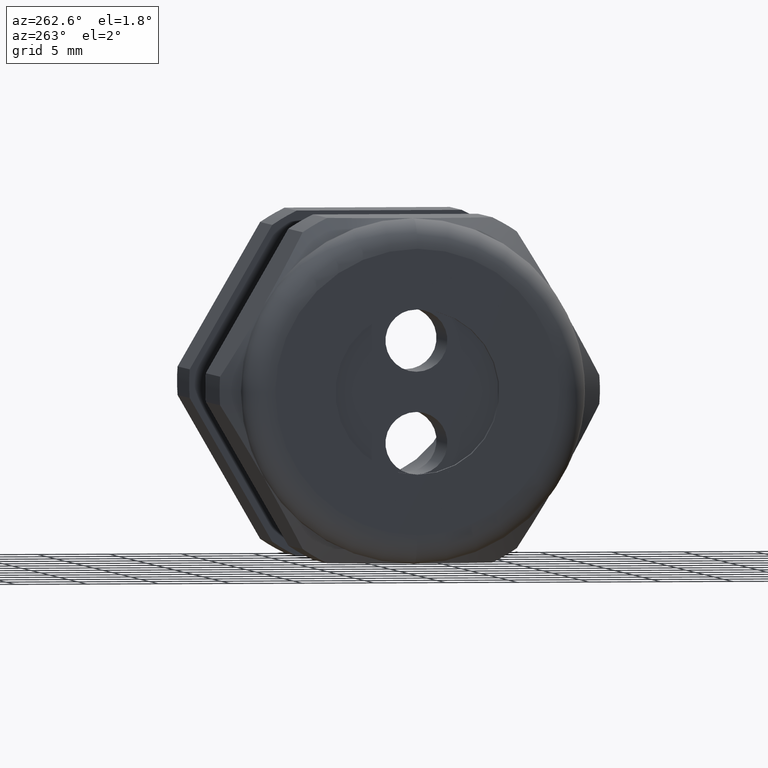
[diagram: clean part render]
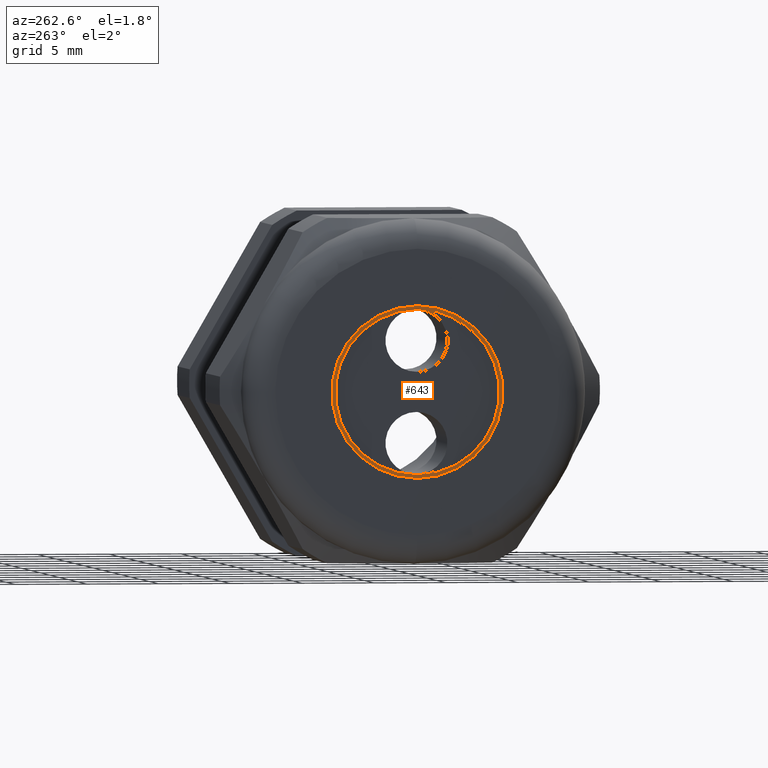
[diagram: same view with one face highlighted and labeled with its STEP entity id]
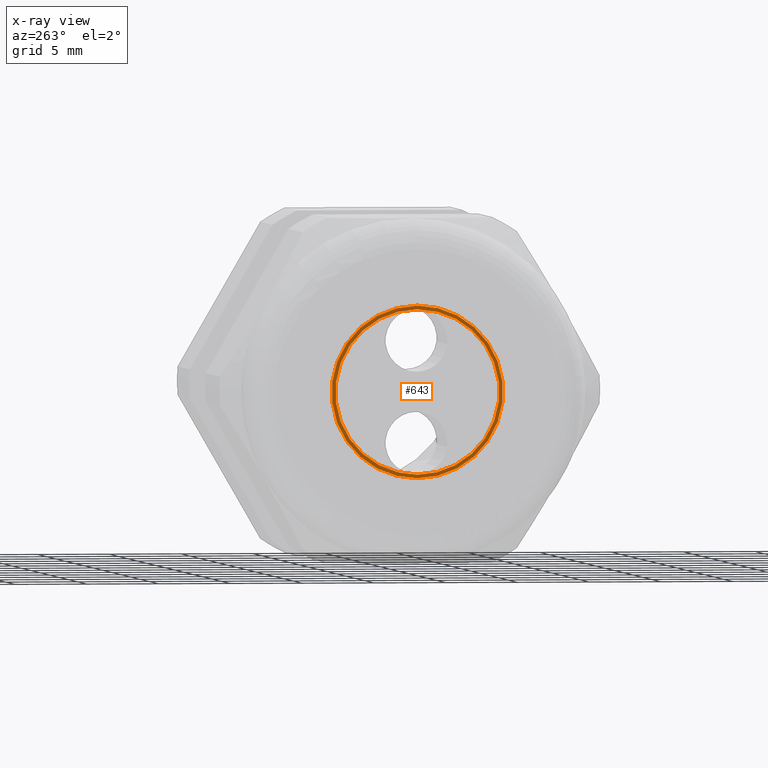
[diagram: x-ray of the same camera — body ghosted, the highlighted face saturated]
A machine part, auxiliary view. The second image highlights one B-rep face of the part: STEP entity #643.
The next image is the same camera in x-ray: the body ghosted, the highlighted face saturated — about 0% of this face is hidden behind the body in this view.
In plain terms, the highlighted planar face has unit normal (-1, 0, 0).
Its self-contained STEP definition (entity closure, byte-faithful):
#643 = ADVANCED_FACE ( 'NONE', ( #2080, #2075 ), #2074, .T. ) ;
#654 = VERTEX_POINT ( 'NONE', #2110 ) ;
#663 = EDGE_CURVE ( 'NONE', #753, #756, #2098, .T. ) ;
#688 = EDGE_CURVE ( 'NONE', #654, #689, #2166, .T. ) ;
#689 = VERTEX_POINT ( 'NONE', #2161 ) ;
#740 = EDGE_LOOP ( 'NONE', ( #741, #743 ) ) ;
#741 = ORIENTED_EDGE ( 'NONE', *, *, #742, .F. ) ;
#742 = EDGE_CURVE ( 'NONE', #689, #654, #2259, .T. ) ;
#743 = ORIENTED_EDGE ( 'NONE', *, *, #688, .F. ) ;
#744 = EDGE_LOOP ( 'NONE', ( #745, #746 ) ) ;
#745 = ORIENTED_EDGE ( 'NONE', *, *, #755, .T. ) ;
#746 = ORIENTED_EDGE ( 'NONE', *, *, #663, .T. ) ;
#753 = VERTEX_POINT ( 'NONE', #2308 ) ;
#755 = EDGE_CURVE ( 'NONE', #756, #753, #2307, .T. ) ;
#756 = VERTEX_POINT ( 'NONE', #2302 ) ;
#2070 = DIRECTION ( 'NONE',  ( 0.0000000000000000000, 0.0000000000000000000, 1.000000000000000000 ) ) ;
#2071 = DIRECTION ( 'NONE',  ( -1.000000000000000000, 0.0000000000000000000, 0.0000000000000000000 ) ) ;
#2072 = CARTESIAN_POINT ( 'NONE',  ( -1.370000000000000100, 0.0000000000000000000, 0.0000000000000000000 ) ) ;
#2073 = AXIS2_PLACEMENT_3D ( 'NONE', #2072, #2071, #2070 ) ;
#2074 = PLANE ( 'NONE',  #2073 ) ;
#2075 = FACE_OUTER_BOUND ( 'NONE', #744, .T. ) ;
#2080 = FACE_BOUND ( 'NONE', #740, .T. ) ;
#2095 = DIRECTION ( 'NONE',  ( -1.000000000000000000, 0.0000000000000000000, 0.0000000000000000000 ) ) ;
#2096 = CARTESIAN_POINT ( 'NONE',  ( -1.370000000000000100, 0.0000000000000000000, 0.0000000000000000000 ) ) ;
#2097 = AXIS2_PLACEMENT_3D ( 'NONE', #2096, #2095, #2160 ) ;
#2098 = CIRCLE ( 'NONE', #2097, 0.2349999999999999900 ) ;
#2110 = CARTESIAN_POINT ( 'NONE',  ( -1.370000000000000100, 2.755455298081544500E-017, -0.2249999999999999800 ) ) ;
#2160 = DIRECTION ( 'NONE',  ( 0.0000000000000000000, 0.0000000000000000000, 1.000000000000000000 ) ) ;
#2161 = CARTESIAN_POINT ( 'NONE',  ( -1.370000000000000100, 0.0000000000000000000, 0.2249999999999999800 ) ) ;
#2162 = DIRECTION ( 'NONE',  ( 0.0000000000000000000, 0.0000000000000000000, 1.000000000000000000 ) ) ;
#2163 = DIRECTION ( 'NONE',  ( -1.000000000000000000, 0.0000000000000000000, 0.0000000000000000000 ) ) ;
#2164 = CARTESIAN_POINT ( 'NONE',  ( -1.370000000000000100, 0.0000000000000000000, 0.0000000000000000000 ) ) ;
#2165 = AXIS2_PLACEMENT_3D ( 'NONE', #2164, #2163, #2162 ) ;
#2166 = CIRCLE ( 'NONE', #2165, 0.2249999999999999800 ) ;
#2256 = DIRECTION ( 'NONE',  ( -1.000000000000000000, 0.0000000000000000000, 0.0000000000000000000 ) ) ;
#2257 = CARTESIAN_POINT ( 'NONE',  ( -1.370000000000000100, 0.0000000000000000000, 0.0000000000000000000 ) ) ;
#2258 = AXIS2_PLACEMENT_3D ( 'NONE', #2257, #2256, #2320 ) ;
#2259 = CIRCLE ( 'NONE', #2258, 0.2249999999999999800 ) ;
#2302 = CARTESIAN_POINT ( 'NONE',  ( -1.370000000000000100, 0.0000000000000000000, 0.2349999999999999900 ) ) ;
#2303 = DIRECTION ( 'NONE',  ( 0.0000000000000000000, 0.0000000000000000000, 1.000000000000000000 ) ) ;
#2304 = DIRECTION ( 'NONE',  ( -1.000000000000000000, 0.0000000000000000000, 0.0000000000000000000 ) ) ;
#2305 = CARTESIAN_POINT ( 'NONE',  ( -1.370000000000000100, 0.0000000000000000000, 0.0000000000000000000 ) ) ;
#2306 = AXIS2_PLACEMENT_3D ( 'NONE', #2305, #2304, #2303 ) ;
#2307 = CIRCLE ( 'NONE', #2306, 0.2349999999999999900 ) ;
#2308 = CARTESIAN_POINT ( 'NONE',  ( -1.370000000000000100, 2.877919977996279800E-017, -0.2349999999999999900 ) ) ;
#2320 = DIRECTION ( 'NONE',  ( 0.0000000000000000000, 0.0000000000000000000, 1.000000000000000000 ) ) ;